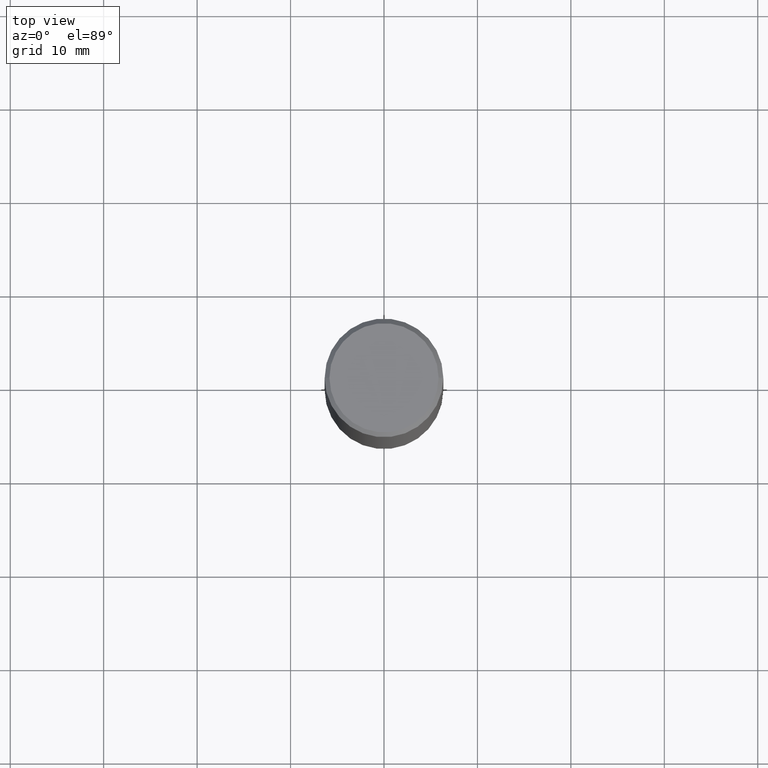
[diagram: clean part render]
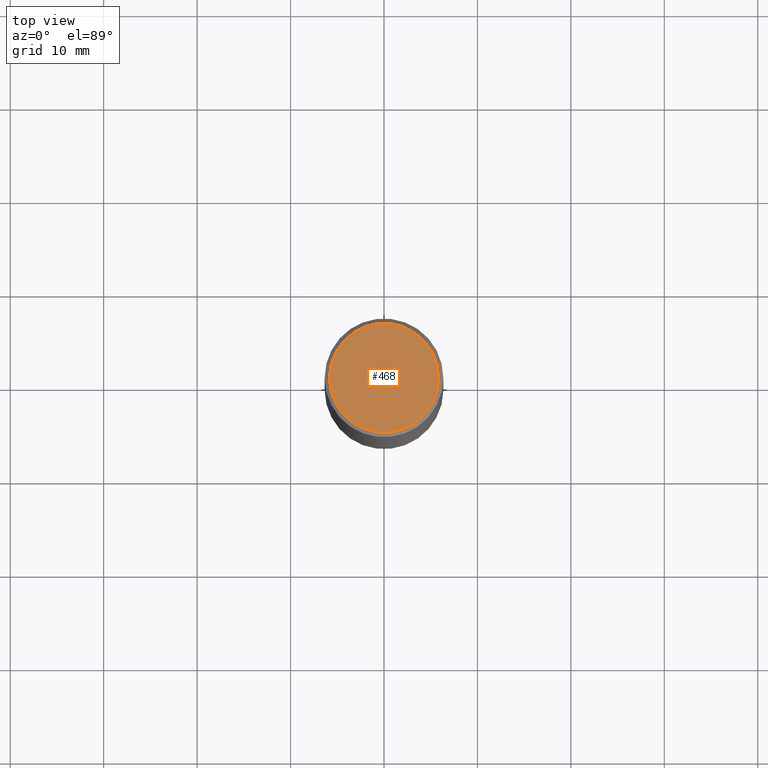
[diagram: same view with one face highlighted and labeled with its STEP entity id]
A machine part, top view. The second image highlights one B-rep face of the part: STEP entity #468.
In plain terms, the highlighted planar face has unit normal (0, -0, -1).
Its self-contained STEP definition (entity closure, byte-faithful):
#1 = DIRECTION ( 'NONE',  ( -2.445468806185136597E-29, 3.491481338843145583E-15, 1.000000000000000000 ) ) ;
#34 = DIRECTION ( 'NONE',  ( -2.445468806185136597E-29, 3.491481338843145583E-15, 1.000000000000000000 ) ) ;
#36 = EDGE_LOOP ( 'NONE', ( #142, #110 ) ) ;
#53 = PLANE ( 'NONE',  #466 ) ;
#110 = ORIENTED_EDGE ( 'NONE', *, *, #359, .T. ) ;
#131 = DIRECTION ( 'NONE',  ( 2.438088387897960049E-29, -3.491481338843145188E-15, -1.000000000000000000 ) ) ;
#142 = ORIENTED_EDGE ( 'NONE', *, *, #330, .T. ) ;
#151 = CARTESIAN_POINT ( 'NONE',  ( -1.043851414335219820E-46, 1.490343170380447200E-32, 4.268512490100411279E-18 ) ) ;
#152 = VERTEX_POINT ( 'NONE', #290 ) ;
#176 = AXIS2_PLACEMENT_3D ( 'NONE', #332, #1, #294 ) ;
#203 = AXIS2_PLACEMENT_3D ( 'NONE', #151, #34, #410 ) ;
#290 = CARTESIAN_POINT ( 'NONE',  ( 0.2299999999999991773, -1.681434332853594081E-15, 4.268512490111905999E-18 ) ) ;
#294 = DIRECTION ( 'NONE',  ( 1.000000000000000000, -6.982962677686267499E-15, 4.876225828469326258E-29 ) ) ;
#322 = CIRCLE ( 'NONE', #176, 0.2299999999999991773 ) ;
#330 = EDGE_CURVE ( 'NONE', #343, #152, #489, .T. ) ;
#332 = CARTESIAN_POINT ( 'NONE',  ( -1.043851414335219820E-46, 1.490343170380447200E-32, 4.268512490100411279E-18 ) ) ;
#343 = VERTEX_POINT ( 'NONE', #491 ) ;
#355 = DIRECTION ( 'NONE',  ( -1.000000000000000000, 6.982962677686265922E-15, -4.876176775795935793E-29 ) ) ;
#359 = EDGE_CURVE ( 'NONE', #152, #343, #322, .T. ) ;
#386 = FACE_OUTER_BOUND ( 'NONE', #36, .T. ) ;
#410 = DIRECTION ( 'NONE',  ( 1.000000000000000000, -6.982962677686267499E-15, 4.876225828469326258E-29 ) ) ;
#466 = AXIS2_PLACEMENT_3D ( 'NONE', #467, #131, #355 ) ;
#467 = CARTESIAN_POINT ( 'NONE',  ( 1.606081415867835348E-15, 0.2299999999999991773, -8.009064516888704189E-16 ) ) ;
#468 = ADVANCED_FACE ( 'NONE', ( #386 ), #53, .F. ) ;
#489 = CIRCLE ( 'NONE', #203, 0.2299999999999991773 ) ;
#491 = CARTESIAN_POINT ( 'NONE',  ( -0.2299999999999991773, 1.640996229256267194E-15, 4.268512490089056766E-18 ) ) ;